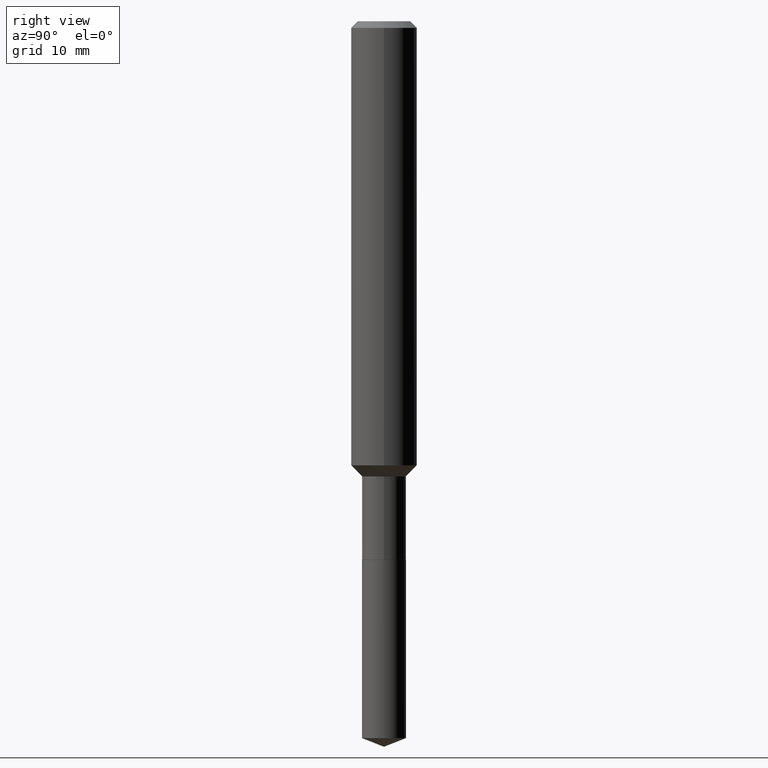
[diagram: clean part render]
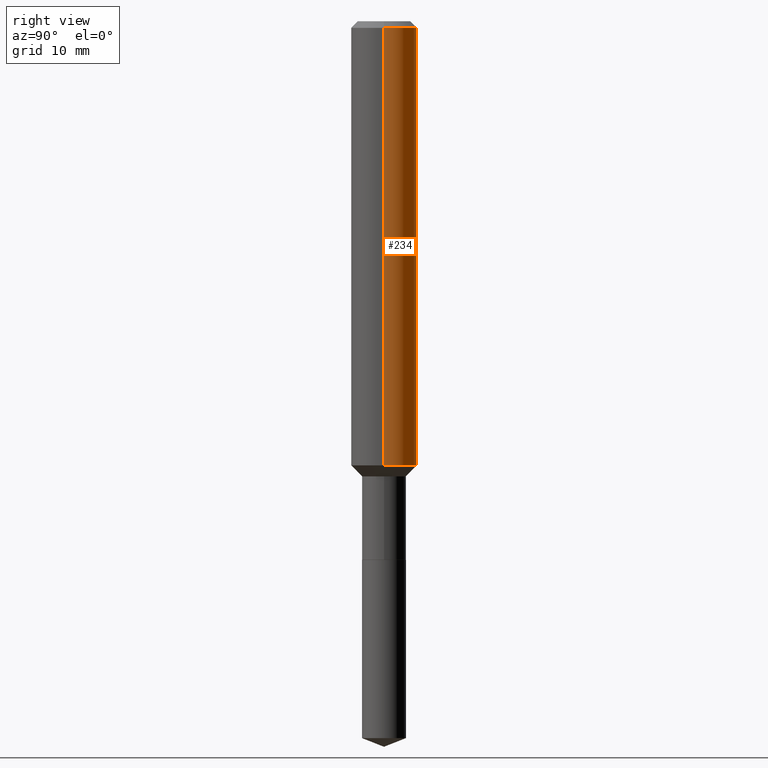
[diagram: same view with one face highlighted and labeled with its STEP entity id]
A machine part, right view. The second image highlights one B-rep face of the part: STEP entity #234.
In plain terms, the highlighted cylindrical surface (edge-blend (fillet) strip) has radius 2.9997 mm, axis along (-0, 0, 1).
Its self-contained STEP definition (entity closure, byte-faithful):
#9 = VECTOR ( 'NONE', #148, 39.37007874015748143 ) ;
#18 = VERTEX_POINT ( 'NONE', #77 ) ;
#26 = ORIENTED_EDGE ( 'NONE', *, *, #384, .T. ) ;
#28 = CARTESIAN_POINT ( 'NONE',  ( 0.1181000000000001909, -6.378063535731712963E-15, -1.590549999999999464 ) ) ;
#59 = EDGE_CURVE ( 'NONE', #215, #18, #368, .T. ) ;
#65 = CARTESIAN_POINT ( 'NONE',  ( -0.1181000000000001077, 8.391509709326790846E-16, -5.809262341591049389E-30 ) ) ;
#75 = EDGE_CURVE ( 'NONE', #365, #215, #305, .T. ) ;
#77 = CARTESIAN_POINT ( 'NONE',  ( -0.1180999999999999966, -1.978771245427539515E-15, -0.02362000000000014088 ) ) ;
#128 = DIRECTION ( 'NONE',  ( 1.000000000000000000, -6.982962677686266711E-15, 4.876176775795935793E-29 ) ) ;
#135 = CARTESIAN_POINT ( 'NONE',  ( 3.889640409677768194E-29, -5.553375643496963912E-15, -1.590549999999999464 ) ) ;
#142 = AXIS2_PLACEMENT_3D ( 'NONE', #227, #409, #230 ) ;
#148 = DIRECTION ( 'NONE',  ( -2.445468806185136877E-29, 3.491481338843145188E-15, 1.000000000000000000 ) ) ;
#170 = CARTESIAN_POINT ( 'NONE',  ( 0.1180999999999999966, -9.071566814582237199E-16, -0.02362000000000014088 ) ) ;
#180 = LINE ( 'NONE', #65, #271 ) ;
#215 = VERTEX_POINT ( 'NONE', #170 ) ;
#224 = ORIENTED_EDGE ( 'NONE', *, *, #75, .F. ) ;
#227 = CARTESIAN_POINT ( 'NONE',  ( 5.776197320209327532E-31, -8.246878922347559293E-17, -0.02362000000000014088 ) ) ;
#230 = DIRECTION ( 'NONE',  ( 1.000000000000000000, -6.982962677686266711E-15, 0.000000000000000000 ) ) ;
#234 = ADVANCED_FACE ( 'NONE', ( #417 ), #385, .T. ) ;
#247 = ORIENTED_EDGE ( 'NONE', *, *, #59, .F. ) ;
#262 = AXIS2_PLACEMENT_3D ( 'NONE', #135, #289, #322 ) ;
#271 = VECTOR ( 'NONE', #326, 39.37007874015748143 ) ;
#289 = DIRECTION ( 'NONE',  ( -2.445468806185136597E-29, 3.491481338843145583E-15, 1.000000000000000000 ) ) ;
#290 = VERTEX_POINT ( 'NONE', #426 ) ;
#305 = LINE ( 'NONE', #380, #9 ) ;
#310 = CARTESIAN_POINT ( 'NONE',  ( 0.000000000000000000, 0.000000000000000000, 0.000000000000000000 ) ) ;
#313 = ORIENTED_EDGE ( 'NONE', *, *, #348, .T. ) ;
#322 = DIRECTION ( 'NONE',  ( 1.000000000000000000, -6.982962677686269077E-15, 0.000000000000000000 ) ) ;
#326 = DIRECTION ( 'NONE',  ( -2.445468806185136877E-29, 3.491481338843145188E-15, 1.000000000000000000 ) ) ;
#348 = EDGE_CURVE ( 'NONE', #290, #18, #180, .T. ) ;
#365 = VERTEX_POINT ( 'NONE', #28 ) ;
#368 = CIRCLE ( 'NONE', #142, 0.1180999999999999966 ) ;
#380 = CARTESIAN_POINT ( 'NONE',  ( 0.1181000000000001077, -8.246878922347488542E-16, 5.758764772215005345E-30 ) ) ;
#384 = EDGE_CURVE ( 'NONE', #365, #290, #456, .T. ) ;
#385 = CYLINDRICAL_SURFACE ( 'NONE', #387, 0.1181000000000001077 ) ;
#387 = AXIS2_PLACEMENT_3D ( 'NONE', #310, #461, #128 ) ;
#409 = DIRECTION ( 'NONE',  ( -2.445468806185136597E-29, 3.491481338843145583E-15, 1.000000000000000000 ) ) ;
#417 = FACE_OUTER_BOUND ( 'NONE', #434, .T. ) ;
#426 = CARTESIAN_POINT ( 'NONE',  ( -0.1181000000000001909, -4.714224672564283348E-15, -1.590549999999999464 ) ) ;
#434 = EDGE_LOOP ( 'NONE', ( #26, #313, #247, #224 ) ) ;
#456 = CIRCLE ( 'NONE', #262, 0.1181000000000001909 ) ;
#461 = DIRECTION ( 'NONE',  ( -2.445468806185136597E-29, 3.491481338843145583E-15, 1.000000000000000000 ) ) ;